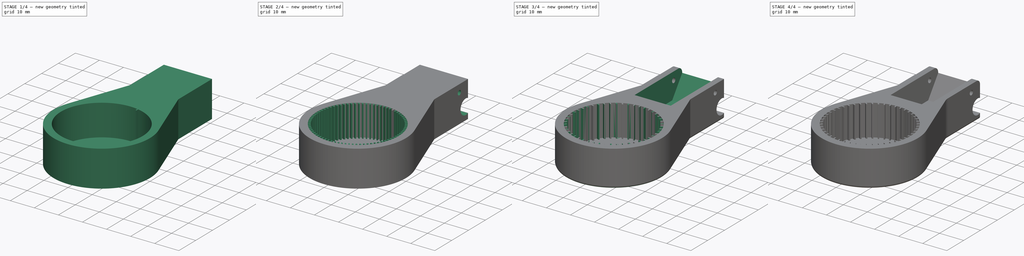
[diagram: build sequence overview — one tinted view per stage of 4, left to right]
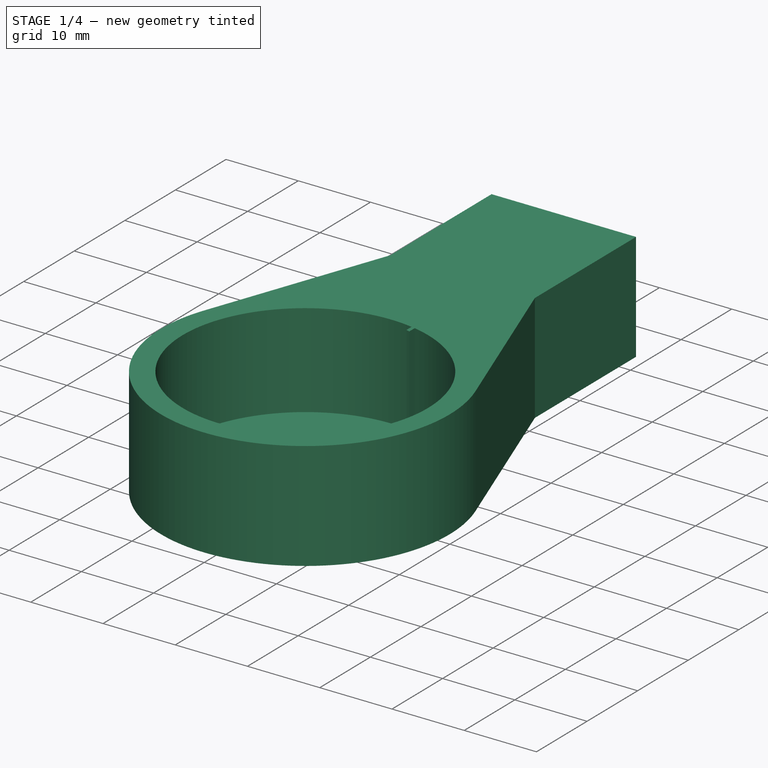
[diagram: stage 1 of 4 — iso view after this stage's code; geometry added in this stage tinted green]
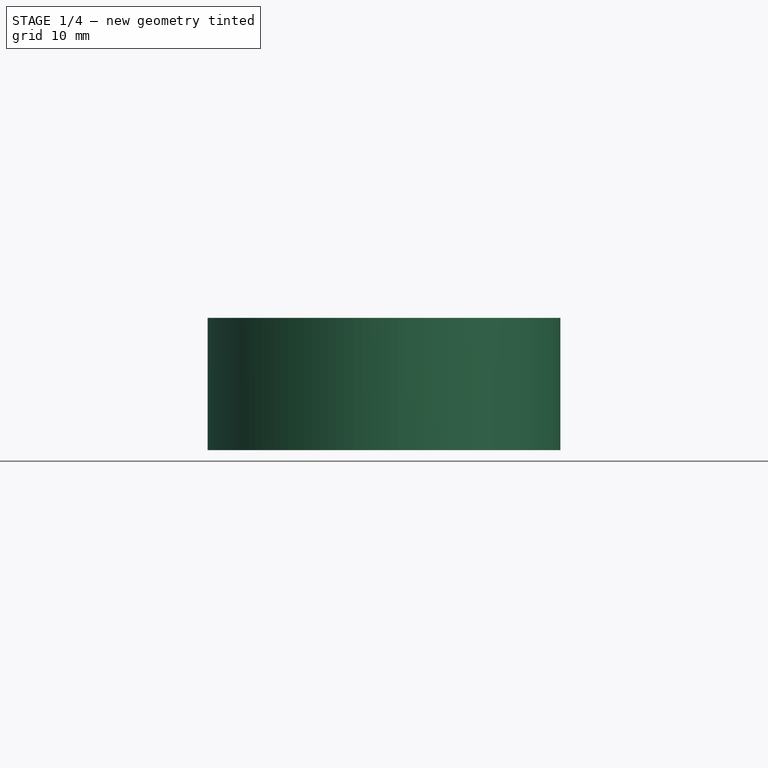
[diagram: stage 1 of 4 — front view after this stage's code; geometry added in this stage tinted green]
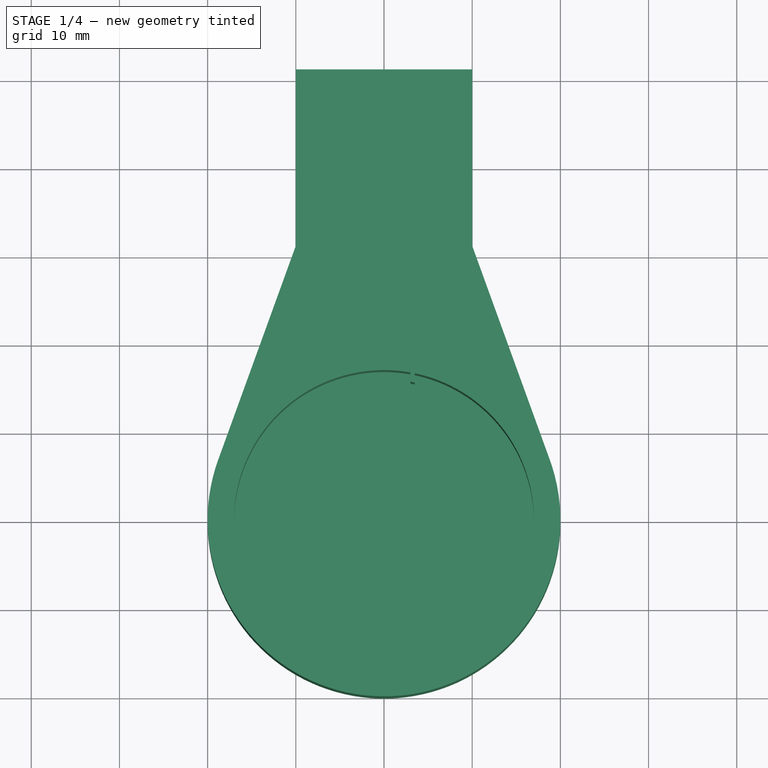
[diagram: stage 1 of 4 — top view after this stage's code; geometry added in this stage tinted green]
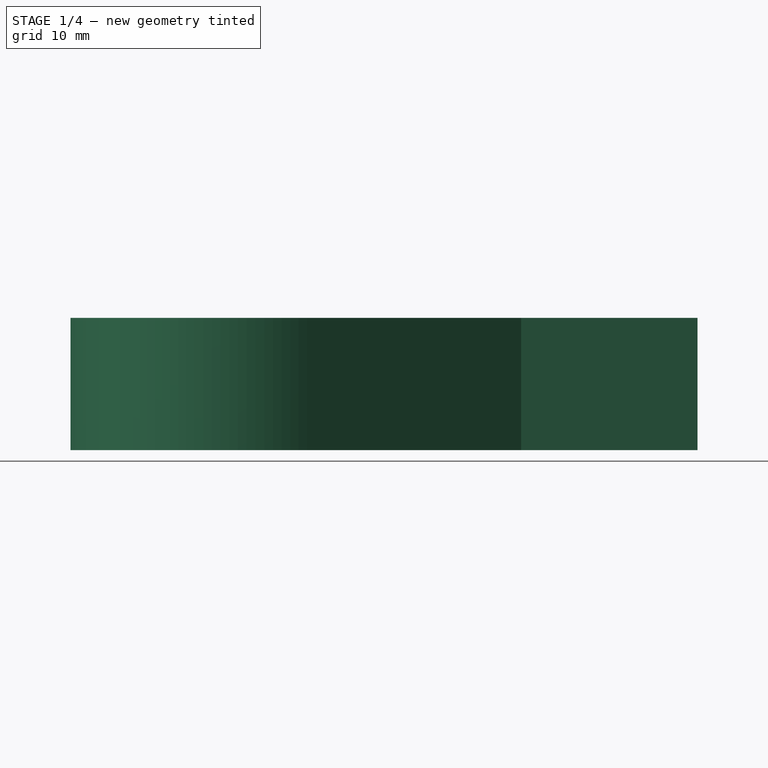
[diagram: stage 1 of 4 — right view after this stage's code; geometry added in this stage tinted green]
FCSTD DOCUMENT  (FreeCAD 0.17R13541 (Git))
Label: essuieGlasse
License: All rights reserved
LicenseURL: http://en.wikipedia.org/wiki/All_rights_reserved
objects: Sketcher::SketchObject×9, PartDesign::Fillet×6, PartDesign::Pocket×3, PartDesign::Pad×2, PartDesign::PolarPattern×1, PartDesign::SubtractiveLoft×1, PartDesign::Body×1
note: 29 computed .brp shape members not serialized (recipe doc carries the construction recipe); baked Part::Feature solids carry a one-line shape summary decoded from their .brp

FEATURE [Sketcher::SketchObject] Sketch
  MapMode = 5
  Support = -> [XY_Plane]
  sketch-geometry (6):
    g0: LineSegment StartX=-18.8132 StartY=6.78698 StartZ=0 EndX=-10 EndY=31.0935 EndZ=0
    g1: LineSegment StartX=-10 StartY=31.0935 StartZ=0 EndX=-10 EndY=51.0935 EndZ=0
    g2: LineSegment StartX=-10 StartY=51.0935 StartZ=0 EndX=10 EndY=51.0935 EndZ=0
    g3: LineSegment StartX=10 StartY=51.0935 StartZ=0 EndX=10 EndY=31.0935 EndZ=0
    g4: LineSegment StartX=10 StartY=31.0935 StartZ=0 EndX=18.8022 EndY=6.81744 EndZ=0
    g5: ArcOfCircle CenterX=0 CenterY=0 CenterZ=0 NormalX=0 NormalY=0 NormalZ=1 AngleXU=0 Radius=20 StartAngle=2.79537 EndAngle=6.63103
  constraints (15):
    c: Coincident(g0,g1)
    c: Vertical(g1)
    c: Coincident(g1,g2)
    c: Horizontal(g2)
    c: Coincident(g2,g3)
    c: Vertical(g3)
    c: Coincident(g3,g4)
    c: DistanceX(g2,g2) = 20
    c: Symmetric(g1,g2,g-2)
    c: DistanceY(g1,g1) = 20
    c: DistanceY(g3,g3) = 20
    c: Angle(g4,g-1) = 1.22295
    c: Coincident(g5,g-1)
    c: Coincident(g5,g4)
    c: Coincident(g5,g0)
FEATURE [PartDesign::Pad] Pad
  Length = 15
  Length2 = 100
  Profile = -> Sketch
  Type = 0
FEATURE [Sketcher::SketchObject] Sketch001
  MapMode = 5
  Placement = pos=(0,0,15) rot=(0,0,1;0rad)
  Support = -> [Pad]
  sketch-geometry (1):
    g0: Circle CenterX=0 CenterY=0 CenterZ=0 NormalX=0 NormalY=0 NormalZ=1 AngleXU=0 Radius=17
  constraints (2):
    c: Coincident(g0,g-1)
    c: Radius(g0) = 17
FEATURE [PartDesign::Pocket] Pocket
  BaseFeature = -> Pad
  Length = 13
  Length2 = 100
  Profile = -> Sketch001
  Type = 0
FEATURE [Sketcher::SketchObject] Sketch002  label="trou bas"
  AttachmentOffset = pos=(0,0,-10) rot=(0,0,1;0rad)
  MapMode = 5
  Placement = pos=(0,0,5) rot=(0,0,1;0rad)
  Support = -> [Pocket]
  sketch-geometry (4):
    g0: LineSegment StartX=-6.86716 StartY=44.4614 StartZ=0 EndX=6.86716 EndY=44.4614 EndZ=0
    g1: LineSegment StartX=6.86716 StartY=44.4614 StartZ=0 EndX=6.86716 EndY=23.0609 EndZ=0
    g2: LineSegment StartX=6.86716 StartY=23.0609 StartZ=0 EndX=-6.86716 EndY=23.0609 EndZ=0
    g3: LineSegment StartX=-6.86716 StartY=23.0609 StartZ=0 EndX=-6.86716 EndY=44.4614 EndZ=0
  constraints (9):
    c: Coincident(g0,g1)
    c: Coincident(g1,g2)
    c: Coincident(g2,g3)
    c: Coincident(g3,g0)
    c: Horizontal(g0)
    c: Horizontal(g2)
    c: Vertical(g1)
    c: Vertical(g3)
    c: Symmetric(g0,g0,g-2)
FEATURE [Sketcher::SketchObject] Sketch003  label="picot"
  MapMode = 5
  Support = -> [XY_Plane]
  sketch-geometry (4):
    g0: ArcOfCircle CenterX=0 CenterY=0 CenterZ=0 NormalX=0 NormalY=0 NormalZ=1 AngleXU=0 Radius=17 StartAngle=1.36437 EndAngle=1.39433
    g1: ArcOfCircle CenterX=-0.049207 CenterY=-0.525297 CenterZ=0 NormalX=0 NormalY=0 NormalZ=1 AngleXU=0 Radius=16.5 StartAngle=1.35497 EndAngle=1.3859
    g2: LineSegment StartX=2.9843 StartY=16.736 StartZ=0 EndX=2.9843 EndY=15.6935 EndZ=0
    g3: LineSegment StartX=3.4843 StartY=16.6391 StartZ=0 EndX=3.4843 EndY=15.5919 EndZ=0
  constraints (10):
    c: Coincident(g0,g-1)
    c: Radius(g0) = 17
    c: Radius(g1) = 16.5
    c: Vertical(g2)
    c: Vertical(g3)
    c: Coincident(g0,g3)
    c: Coincident(g0,g2)
    c: Coincident(g1,g3)
    c: Coincident(g1,g2)
    c: DistanceX(g1,g1) = 0.5
FEATURE [PartDesign::Pad] Pad001
  BaseFeature = -> Pocket
  Length = 15
  Length2 = 100
  Profile = -> Sketch003
  Type = 0
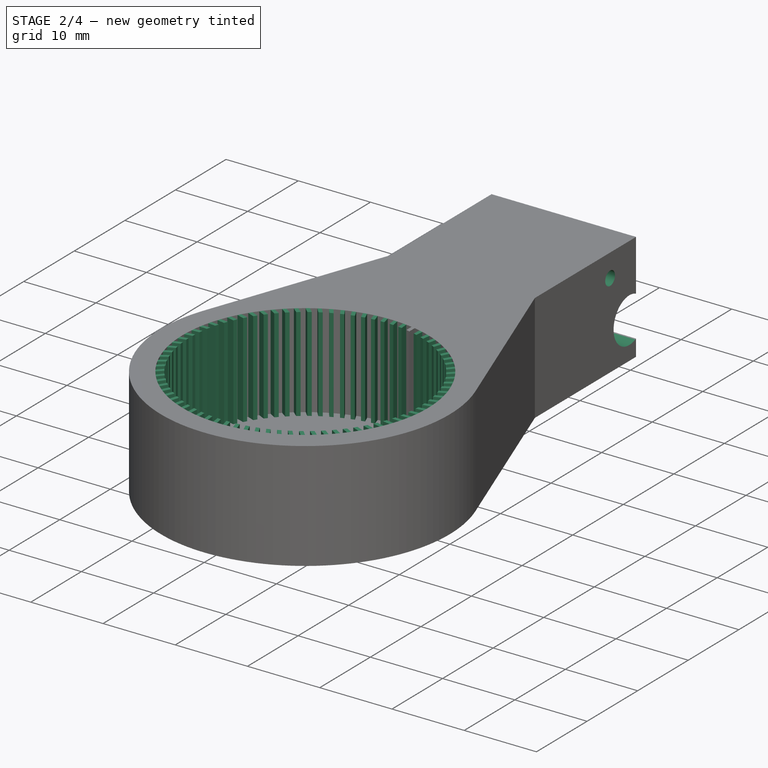
[diagram: stage 2 of 4 — iso view after this stage's code; geometry added in this stage tinted green]
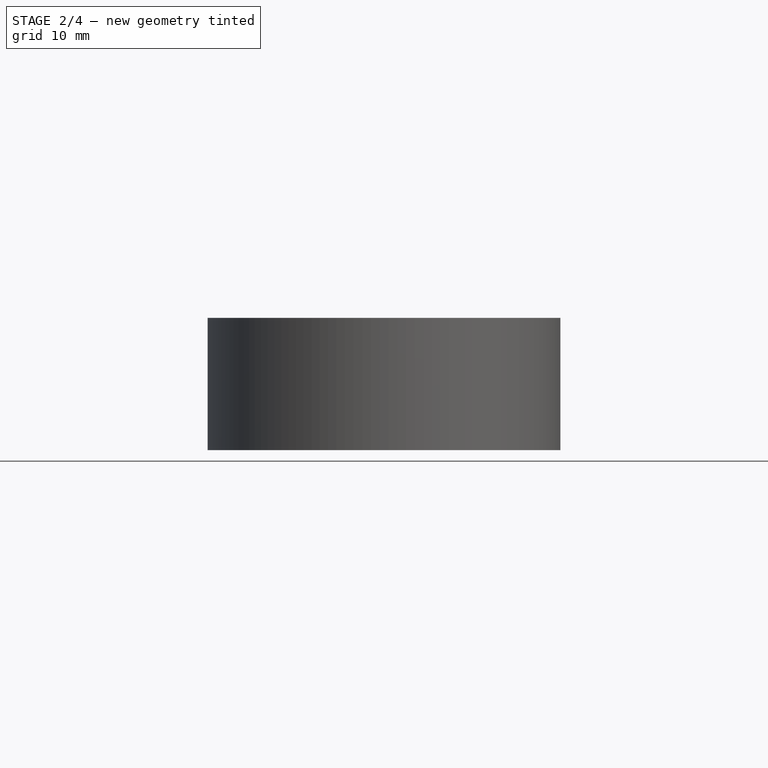
[diagram: stage 2 of 4 — front view after this stage's code; geometry added in this stage tinted green]
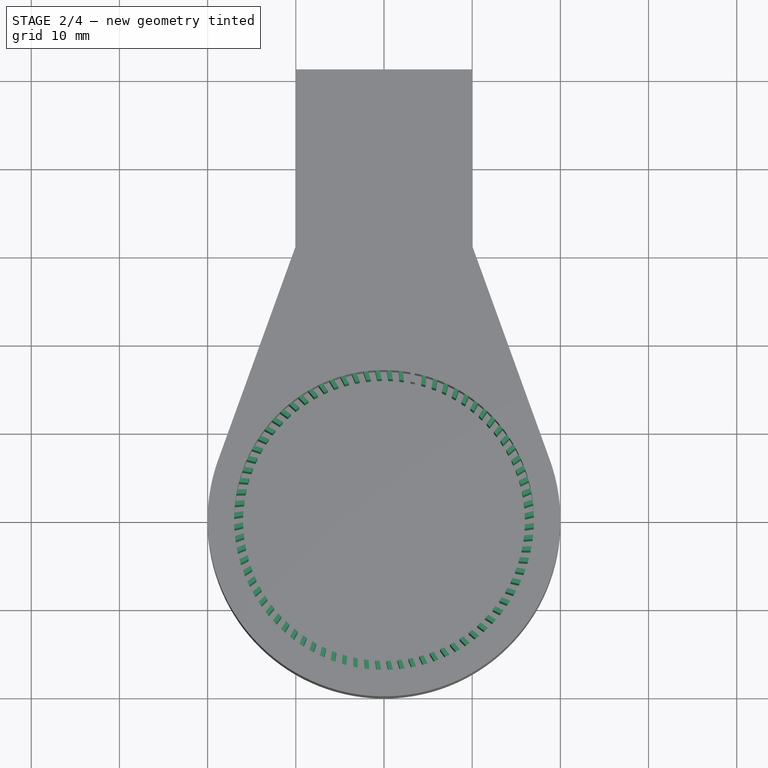
[diagram: stage 2 of 4 — top view after this stage's code; geometry added in this stage tinted green]
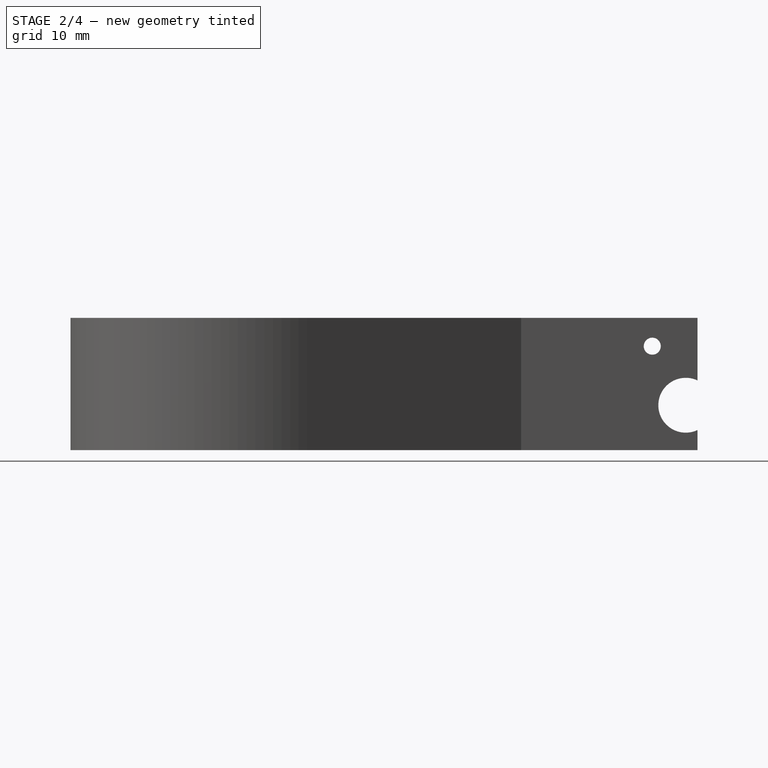
[diagram: stage 2 of 4 — right view after this stage's code; geometry added in this stage tinted green]
FEATURE [PartDesign::PolarPattern] PolarPattern
  Angle = 360
  Axis = -> Sketch003 [N_Axis]
  BaseFeature = -> Pad001
  Occurrences = 80
  Originals = -> [Pad001]
FEATURE [Sketcher::SketchObject] Sketch004
  MapMode = 5
  Placement = pos=(-10,0,0) rot=(0.57735,-0.57735,-0.57735;2.0944rad)
  Support = -> [PolarPattern]
FEATURE [Sketcher::SketchObject] Sketch005
  MapMode = 5
  Placement = pos=(-10,0,0) rot=(0.57735,-0.57735,-0.57735;2.0944rad)
  Support = -> [PolarPattern]
FEATURE [Sketcher::SketchObject] Sketch006
  MapMode = 5
  Placement = pos=(10,0,0) rot=(0.57735,0.57735,0.57735;2.0944rad)
  Support = -> [PolarPattern]
  sketch-geometry (1):
    g0: Circle CenterX=49.7656 CenterY=5.09213 CenterZ=0 NormalX=0 NormalY=0 NormalZ=1 AngleXU=0 Radius=3.10942
FEATURE [PartDesign::Pocket] Pocket002
  BaseFeature = -> PolarPattern
  Length = 5
  Length2 = 100
  Profile = -> Sketch006
  Type = 1
FEATURE [Sketcher::SketchObject] Sketch007
  MapMode = 5
  Placement = pos=(-10,0,0) rot=(0.57735,-0.57735,-0.57735;2.0944rad)
  Support = -> [Pocket002]
  sketch-geometry (1):
    g0: Circle CenterX=-45.9687 CenterY=11.7884 CenterZ=0 NormalX=0 NormalY=0 NormalZ=1 AngleXU=0 Radius=0.964723
FEATURE [PartDesign::Pocket] Pocket003
  BaseFeature = -> Pocket002
  Length = 5
  Length2 = 100
  Profile = -> Sketch007
  Type = 1
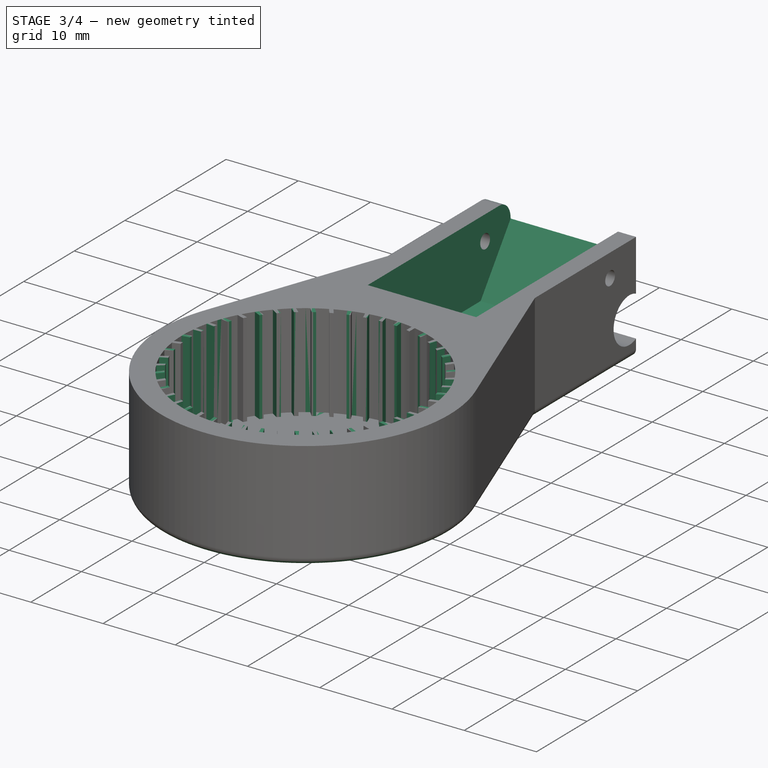
[diagram: stage 3 of 4 — iso view after this stage's code; geometry added in this stage tinted green]
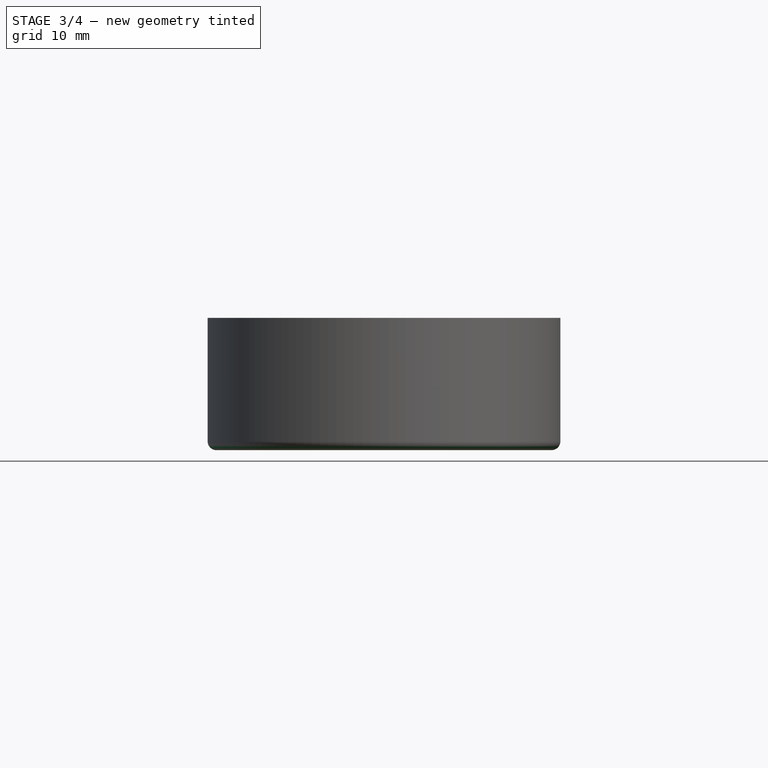
[diagram: stage 3 of 4 — front view after this stage's code; geometry added in this stage tinted green]
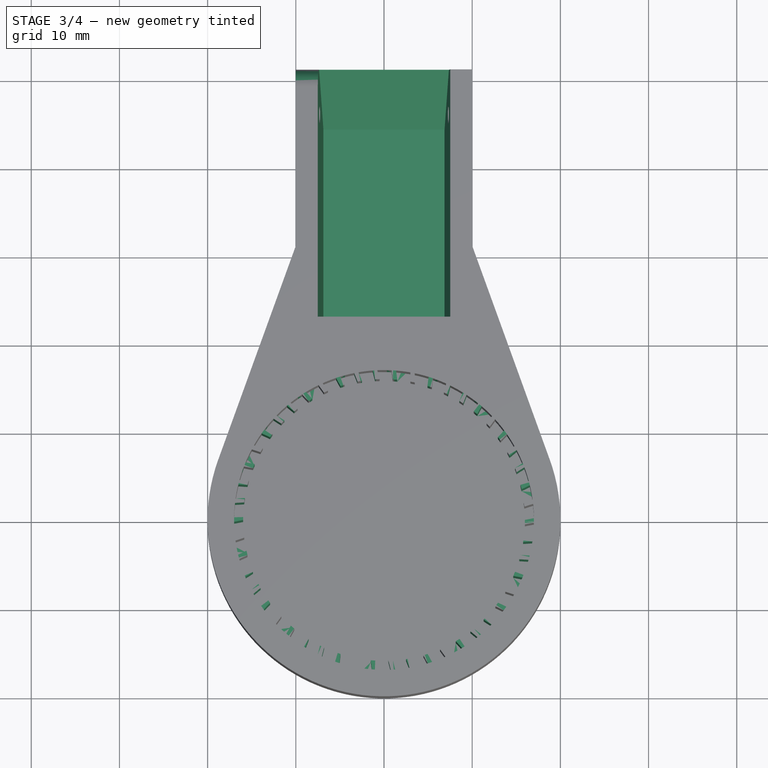
[diagram: stage 3 of 4 — top view after this stage's code; geometry added in this stage tinted green]
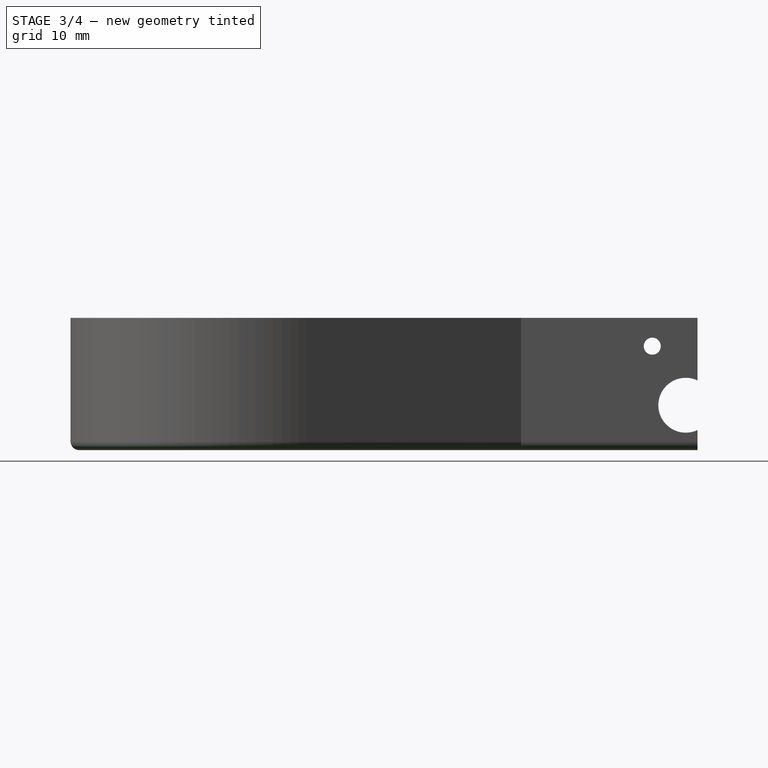
[diagram: stage 3 of 4 — right view after this stage's code; geometry added in this stage tinted green]
FEATURE [Sketcher::SketchObject] Sketch008  label="trou haut"
  MapMode = 5
  Placement = pos=(0,0,15) rot=(0,0,1;0rad)
  Support = -> [Pocket003]
  sketch-geometry (4):
    g0: LineSegment StartX=-7.50666 StartY=53.1192 StartZ=0 EndX=7.50666 EndY=53.1192 EndZ=0
    g1: LineSegment StartX=7.50666 StartY=53.1192 StartZ=0 EndX=7.50666 EndY=23.0609 EndZ=0
    g2: LineSegment StartX=7.50666 StartY=23.0609 StartZ=0 EndX=-7.50666 EndY=23.0609 EndZ=0
    g3: LineSegment StartX=-7.50666 StartY=23.0609 StartZ=0 EndX=-7.50666 EndY=53.1192 EndZ=0
  constraints (9):
    c: Coincident(g0,g1)
    c: Coincident(g1,g2)
    c: Coincident(g2,g3)
    c: Coincident(g3,g0)
    c: Horizontal(g0)
    c: Horizontal(g2)
    c: Vertical(g1)
    c: Vertical(g3)
    c: Symmetric(g0,g0,g-2)
FEATURE [PartDesign::SubtractiveLoft] SubtractiveLoft
  BaseFeature = -> Pocket003
  Closed = true
  Profile = -> Sketch002
  Ruled = false
  Sections = -> [Sketch008]
FEATURE [PartDesign::Fillet] Fillet
  Base = -> SubtractiveLoft [Edge6]
  BaseFeature = -> SubtractiveLoft
  Radius = 1
FEATURE [PartDesign::Fillet] Fillet001
  Base = -> Fillet [Edge131,Edge122]
  BaseFeature = -> Fillet
  Radius = 1
FEATURE [PartDesign::Fillet] Fillet002
  Base = -> Fillet001 [Edge230]
  BaseFeature = -> Fillet001
  Radius = 2
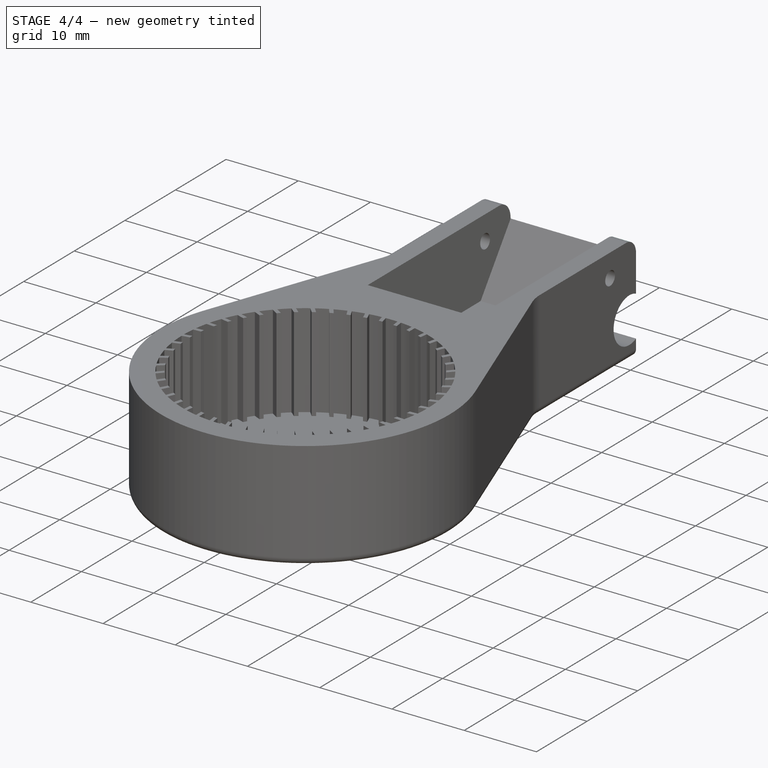
[diagram: stage 4 of 4 — iso view after this stage's code; geometry added in this stage tinted green]
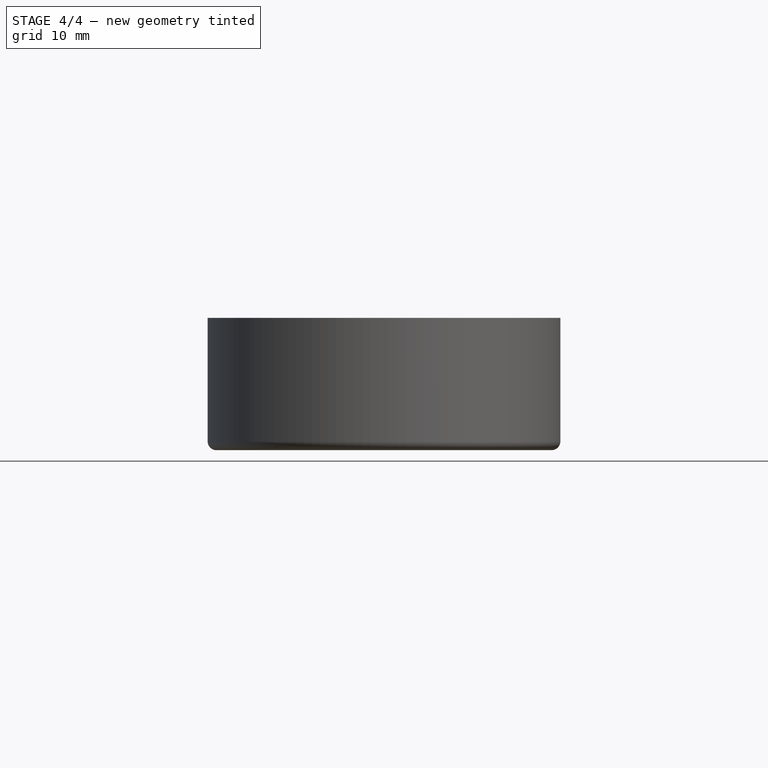
[diagram: stage 4 of 4 — front view after this stage's code; geometry added in this stage tinted green]
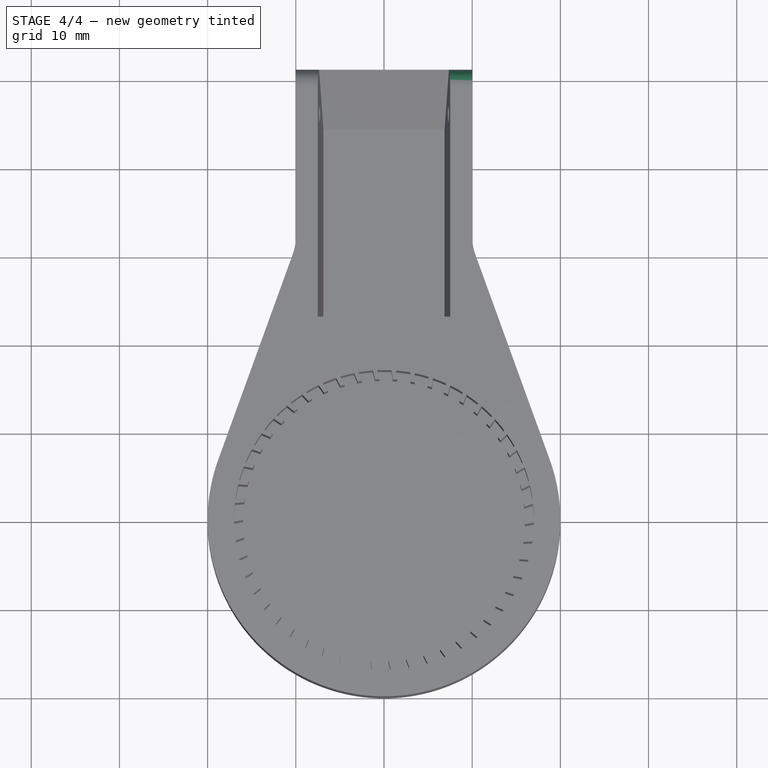
[diagram: stage 4 of 4 — top view after this stage's code; geometry added in this stage tinted green]
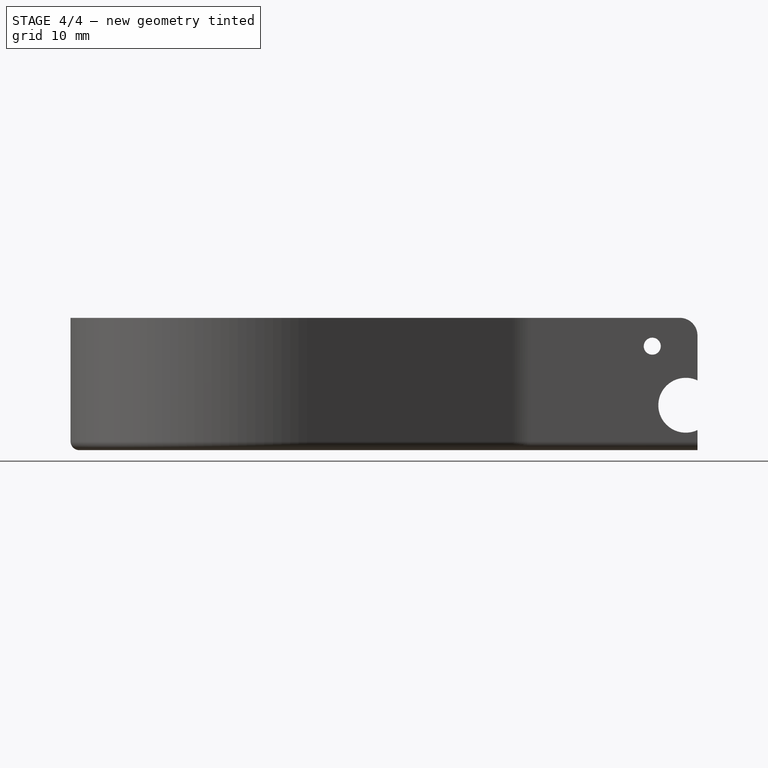
[diagram: stage 4 of 4 — right view after this stage's code; geometry added in this stage tinted green]
FEATURE [PartDesign::Fillet] Fillet003
  Base = -> Fillet002 [Edge7]
  BaseFeature = -> Fillet002
  Radius = 2
FEATURE [PartDesign::Fillet] Fillet004
  Base = -> Fillet003 [Edge126]
  BaseFeature = -> Fillet003
  Radius = 6
FEATURE [PartDesign::Fillet] Fillet005
  Base = -> Fillet004 [Edge137]
  BaseFeature = -> Fillet004
  Radius = 6
FEATURE [PartDesign::Body] Body
  Group = -> [Sketch,Pad,Sketch001,Pocket,Sketch002,Sketch003,Pad001,PolarPattern,Sketch004,Sketch005,Sketch006,Pocket002,Sketch007,Pocket003,Sketch008,SubtractiveLoft,Fillet,Fillet001,Fillet002,Fillet003,Fillet004,Fillet005]
  Origin = -> Origin
  Tip = -> Fillet005
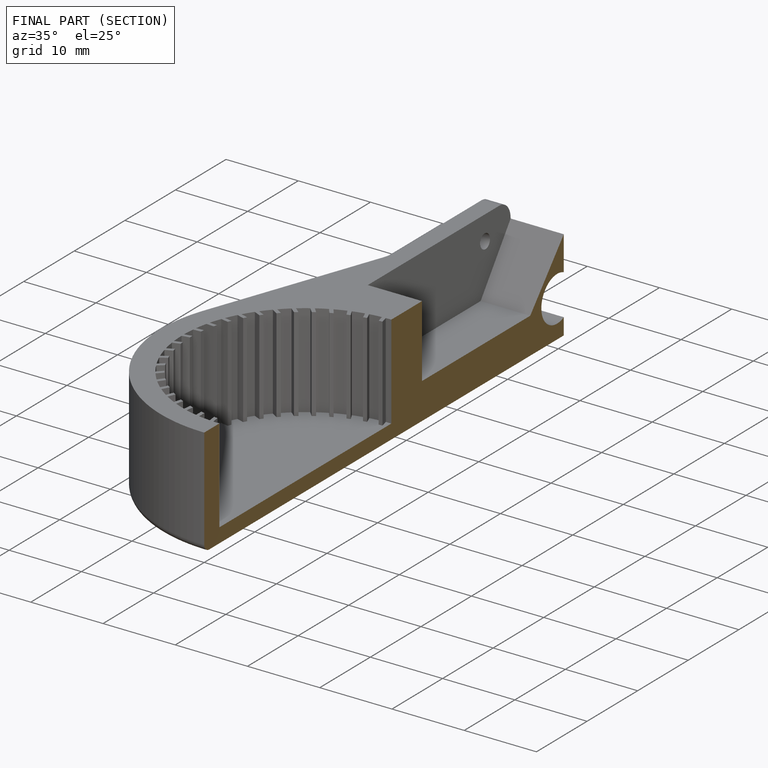
[diagram: finished part — half-section view (interior)]
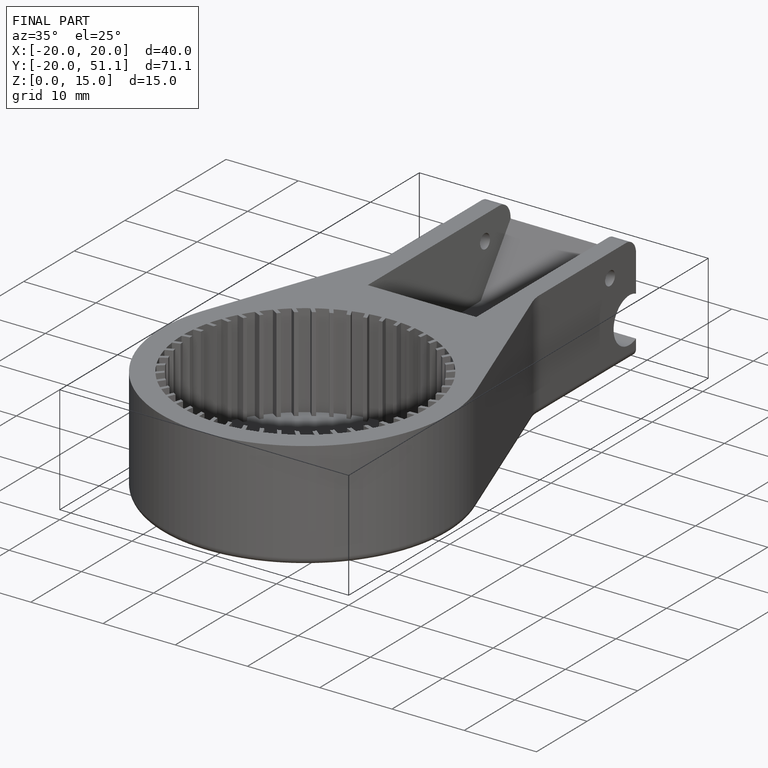
[diagram: finished part — iso view with bounding-box wireframe]
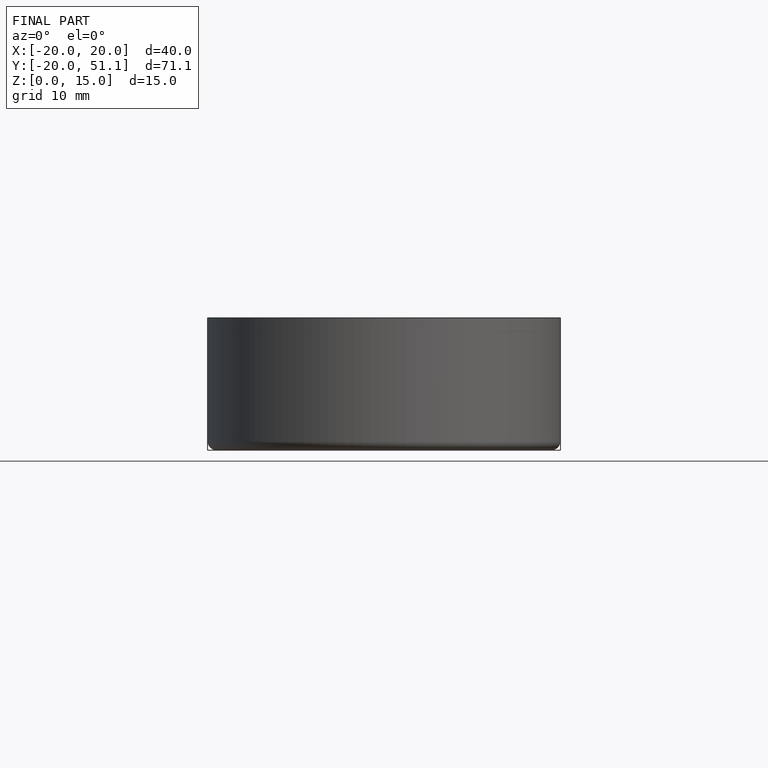
[diagram: finished part — front view with bounding-box wireframe]
